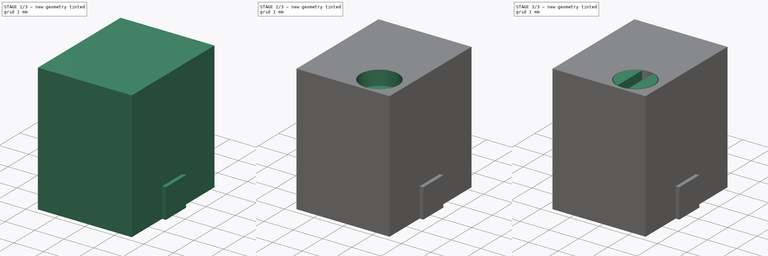
[diagram: build sequence overview — one tinted view per stage of 3, left to right]
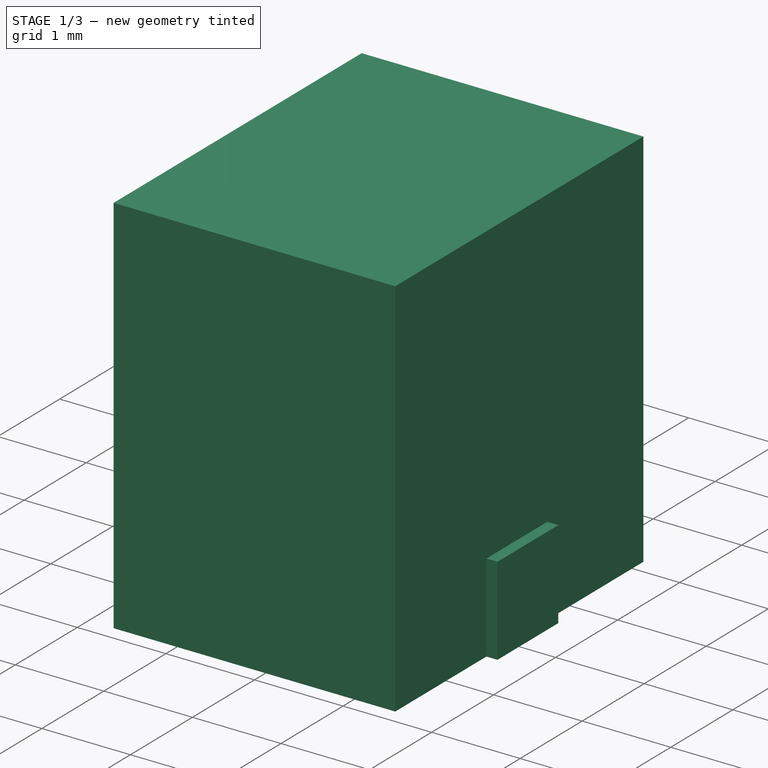
[diagram: stage 1 of 3 — iso view after this stage's code; geometry added in this stage tinted green]
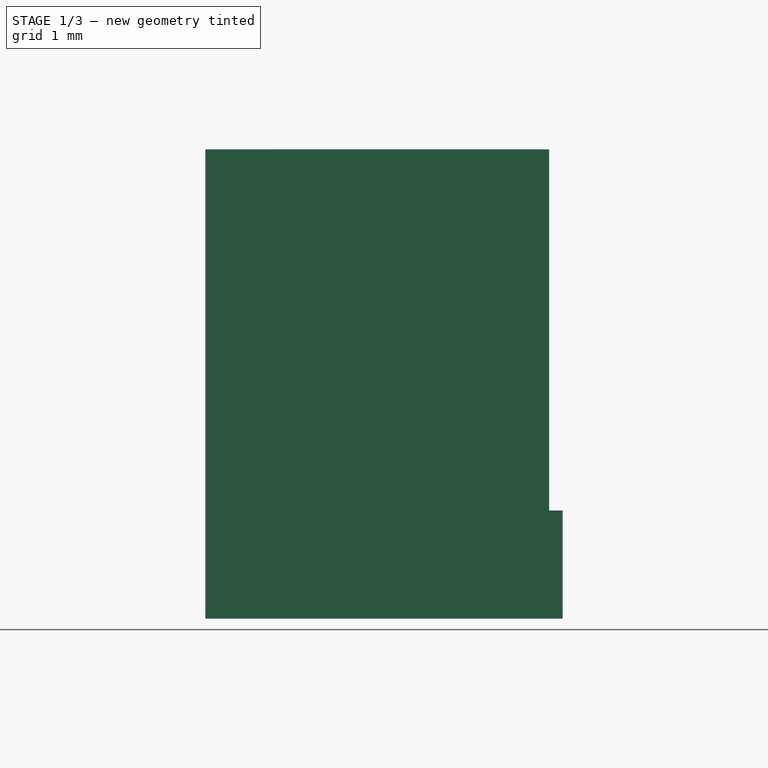
[diagram: stage 1 of 3 — front view after this stage's code; geometry added in this stage tinted green]
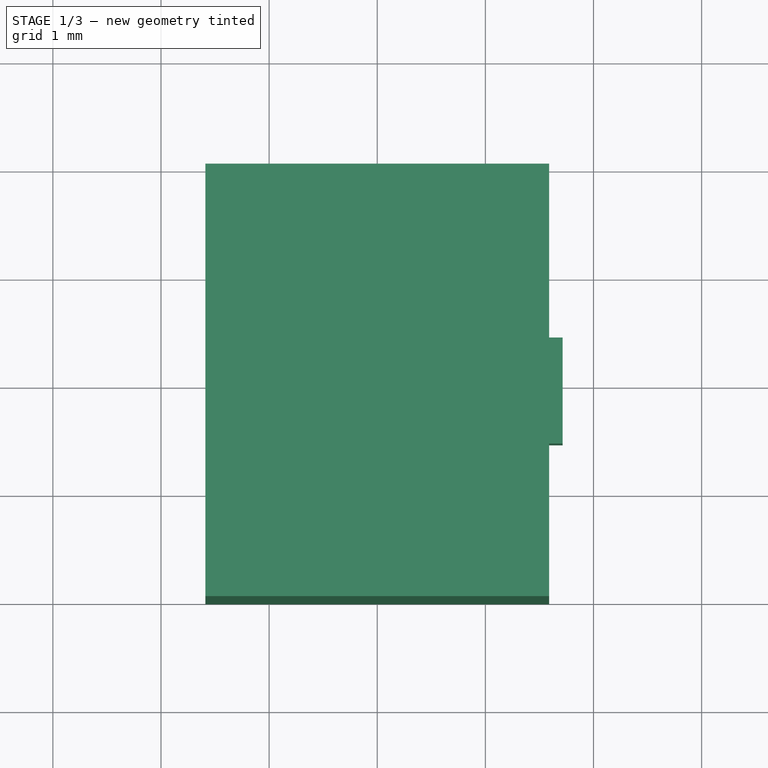
[diagram: stage 1 of 3 — top view after this stage's code; geometry added in this stage tinted green]
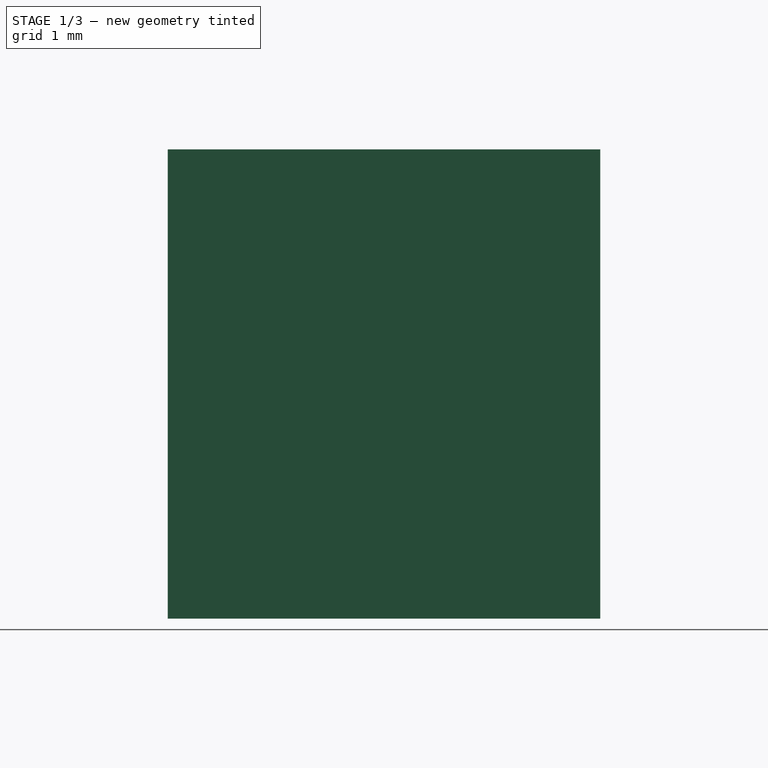
[diagram: stage 1 of 3 — right view after this stage's code; geometry added in this stage tinted green]
FCSTD DOCUMENT  (FreeCAD 0.20R29603 (Git))
Label: Potentiometer_Bourns_3223W_Vertical
License: All rights reserved
LicenseURL: http://en.wikipedia.org/wiki/All_rights_reserved
objects: Sketcher::SketchObject×6, PartDesign::Pad×4, PartDesign::Pocket×2, PartDesign::Body×1
note: 19 computed .brp shape members not serialized (recipe doc carries the construction recipe); baked Part::Feature solids carry a one-line shape summary decoded from their .brp

FEATURE [Sketcher::SketchObject] Sketch
  FullyConstrained = true
  MapMode = 5
  Support = -> [XY_Plane]
  sketch-geometry (5):
    g0: LineSegment StartX=-1.59 StartY=2 StartZ=0 EndX=-1.59 EndY=-2 EndZ=0
    g1: LineSegment StartX=-1.59 StartY=-2 StartZ=0 EndX=1.59 EndY=-2 EndZ=0
    g2: LineSegment StartX=1.59 StartY=-2 StartZ=0 EndX=1.59 EndY=2 EndZ=0
    g3: LineSegment StartX=1.59 StartY=2 StartZ=0 EndX=-1.59 EndY=2 EndZ=0
    g4: GeomPoint X=0 Y=0 Z=0
  constraints (12):
    c: Coincident(g0,g1)
    c: Coincident(g1,g2)
    c: Coincident(g2,g3)
    c: Coincident(g3,g0)
    c: Horizontal(g1)
    c: Horizontal(g3)
    c: Vertical(g0)
    c: Vertical(g2)
    c: Symmetric(g1,g0,g4)
    c: Coincident(g4,g-1)
    c: DistanceX(g3,g3) = 3.18
    c: DistanceY(g0,g0) = 4
FEATURE [PartDesign::Pad] Pad
  Direction = (0,0,1)
  Length = 4.34
  Length2 = 10
  Profile = -> Sketch
  ReferenceAxis = -> Sketch [N_Axis]
  Type = 0
FEATURE [Sketcher::SketchObject] Sketch001
  FullyConstrained = true
  MapMode = 5
  Placement = pos=(1.59,0,0) rot=(0.57735,0.57735,0.57735;2.0944rad)
  Support = -> [Pad]
  sketch-geometry (5):
    g0: LineSegment StartX=-0.53 StartY=1 StartZ=0 EndX=-0.53 EndY=0 EndZ=0
    g1: LineSegment StartX=-0.53 StartY=0 StartZ=0 EndX=0.45 EndY=0 EndZ=0
    g2: LineSegment StartX=0.45 StartY=0 StartZ=0 EndX=0.45 EndY=1 EndZ=0
    g3: LineSegment StartX=0.45 StartY=1 StartZ=0 EndX=-0.53 EndY=1 EndZ=0
    g4: GeomPoint X=-0.04 Y=0.5 Z=0
  constraints (13):
    c: Coincident(g0,g1)
    c: Coincident(g1,g2)
    c: Coincident(g2,g3)
    c: Coincident(g3,g0)
    c: Horizontal(g1)
    c: Horizontal(g3)
    c: Vertical(g0)
    c: Vertical(g2)
    c: Symmetric(g1,g0,g4)
    c: PointOnObject(g-1,g1)
    c: DistanceY(g0,g0) = 1
    c: DistanceX(g3,g3) = 0.98
    c: DistanceX(g4,g-1) = 0.04
FEATURE [PartDesign::Pad] Pad001
  BaseFeature = -> Pad
  Direction = (1,0,0)
  Length = 0.125
  Length2 = 10
  Profile = -> Sketch001
  ReferenceAxis = -> Sketch001 [N_Axis]
  Type = 0
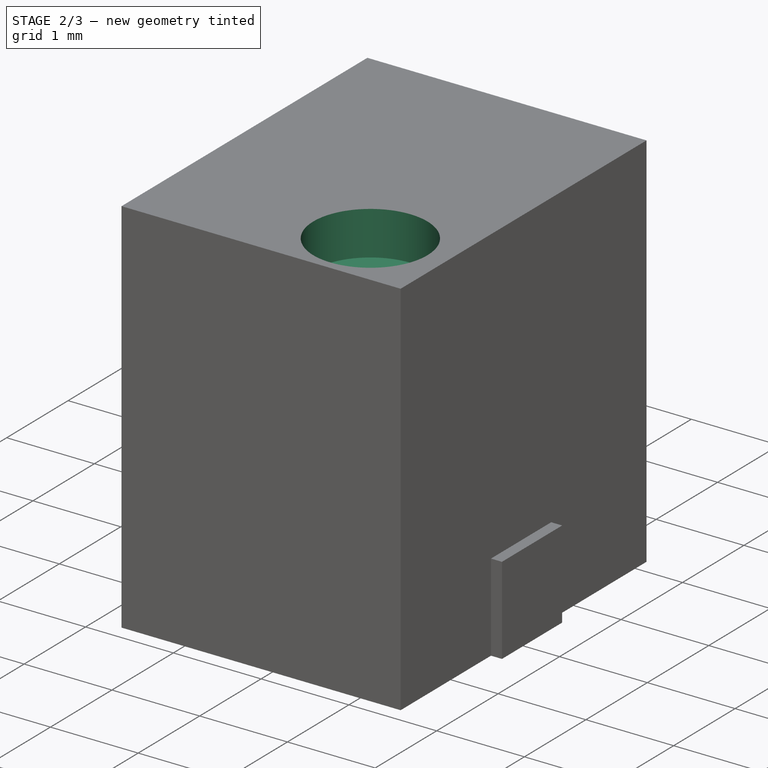
[diagram: stage 2 of 3 — iso view after this stage's code; geometry added in this stage tinted green]
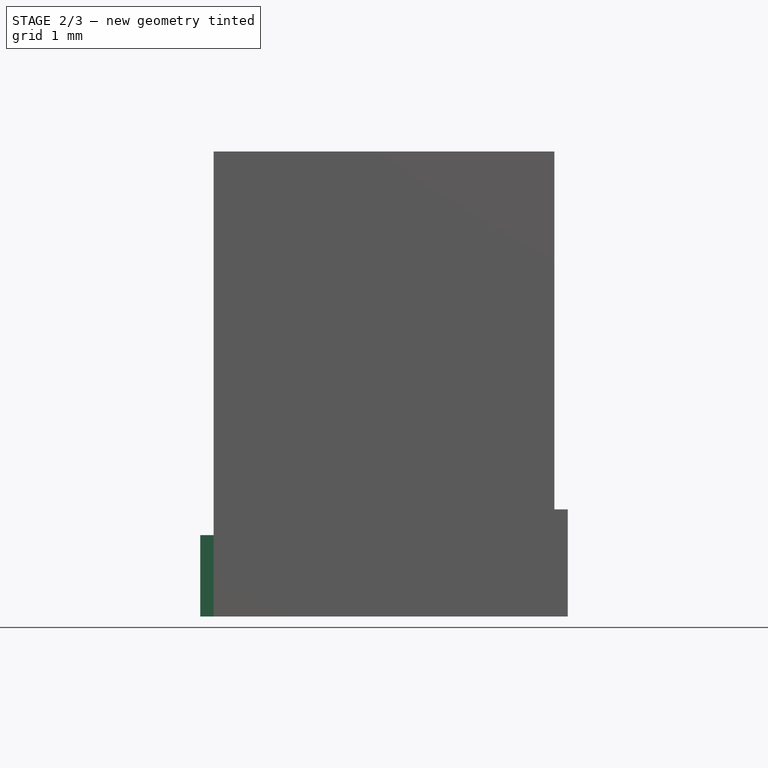
[diagram: stage 2 of 3 — front view after this stage's code; geometry added in this stage tinted green]
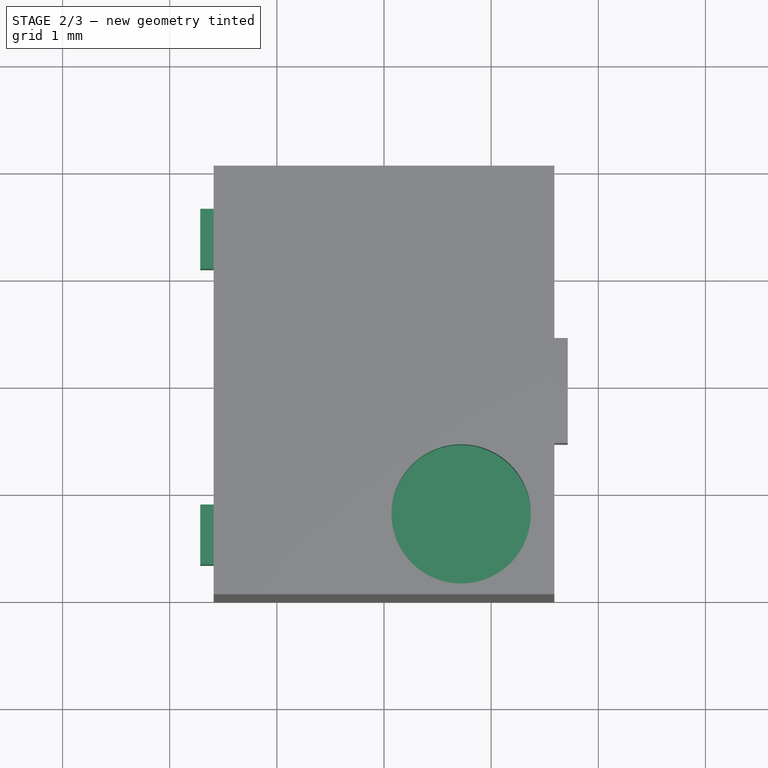
[diagram: stage 2 of 3 — top view after this stage's code; geometry added in this stage tinted green]
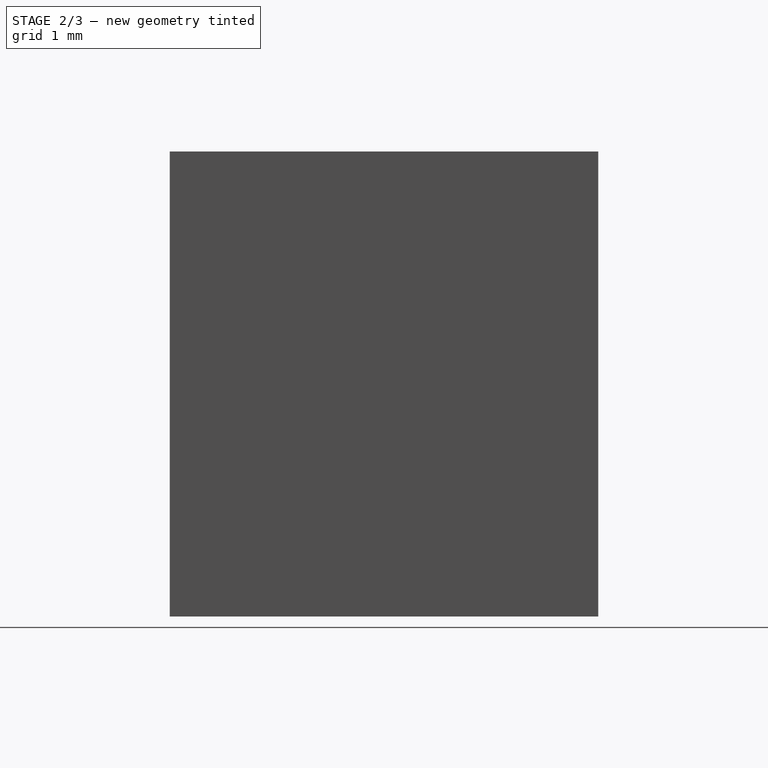
[diagram: stage 2 of 3 — right view after this stage's code; geometry added in this stage tinted green]
FEATURE [Sketcher::SketchObject] Sketch002
  FullyConstrained = true
  MapMode = 5
  Placement = pos=(-1.59,0,0) rot=(0.57735,-0.57735,-0.57735;2.0944rad)
  Support = -> [Pad001]
  sketch-geometry (10):
    g0: LineSegment StartX=-1.66 StartY=0.76 StartZ=0 EndX=-1.66 EndY=0 EndZ=0
    g1: LineSegment StartX=-1.66 StartY=0 StartZ=0 EndX=-1.1 EndY=0 EndZ=0
    g2: LineSegment StartX=-1.1 StartY=0 StartZ=0 EndX=-1.1 EndY=0.76 EndZ=0
    g3: LineSegment StartX=-1.1 StartY=0.76 StartZ=0 EndX=-1.66 EndY=0.76 EndZ=0
    g4: GeomPoint X=-1.38 Y=0.38 Z=0
    g5: LineSegment StartX=1.66 StartY=0.76 StartZ=0 EndX=1.66 EndY=0 EndZ=0
    g6: LineSegment StartX=1.66 StartY=0 StartZ=0 EndX=1.1 EndY=0 EndZ=0
    g7: LineSegment StartX=1.1 StartY=0 StartZ=0 EndX=1.1 EndY=0.76 EndZ=0
    g8: LineSegment StartX=1.1 StartY=0.76 StartZ=0 EndX=1.66 EndY=0.76 EndZ=0
    g9: GeomPoint X=1.38 Y=0.38 Z=0
  constraints (24):
    c: Coincident(g0,g1)
    c: Coincident(g1,g2)
    c: Coincident(g2,g3)
    c: Coincident(g3,g0)
    c: Horizontal(g1)
    c: Horizontal(g3)
    c: Vertical(g0)
    c: Vertical(g2)
    c: Symmetric(g1,g0,g4)
    c: PointOnObject(g1,g-1)
    c: DistanceX(g4,g-1) = 1.38
    c: DistanceX(g3,g3) = 0.56
    c: DistanceY(g0,g0) = 0.76
    c: Coincident(g5,g6)
    c: Coincident(g6,g7)
    c: Coincident(g7,g8)
    c: Coincident(g8,g5)
    c: Horizontal(g8)
    c: Vertical(g5)
    c: Vertical(g7)
    c: Symmetric(g6,g5,g9)
    c: Symmetric(g1,g6,g-2)
    c: Symmetric(g0,g5,g-2)
    c: Horizontal(g2,g7)
FEATURE [PartDesign::Pad] Pad002
  BaseFeature = -> Pad001
  Direction = (-1,0,0)
  Length = 0.125
  Length2 = 10
  Profile = -> Sketch002
  ReferenceAxis = -> Sketch002 [N_Axis]
  Type = 0
FEATURE [Sketcher::SketchObject] Sketch003
  FullyConstrained = true
  MapMode = 5
  Placement = pos=(0,0,4.34) rot=(0,0,1;0rad)
  Support = -> [Pad002]
  sketch-geometry (1):
    g0: Circle CenterX=0.72 CenterY=-1.25 CenterZ=0 NormalX=0 NormalY=0 NormalZ=1 AngleXU=0 Radius=0.65
  constraints (3):
    c: DistanceX(g-1,g0) = 0.72
    c: Radius(g0) = 0.65
    c: DistanceY(g0,g-1) = 1.25
FEATURE [PartDesign::Pocket] Pocket
  BaseFeature = -> Pad002
  Direction = (0,0,-1)
  Length = 0.5
  Length2 = 5
  Profile = -> Sketch003
  ReferenceAxis = -> Sketch003 [N_Axis]
  Type = 0
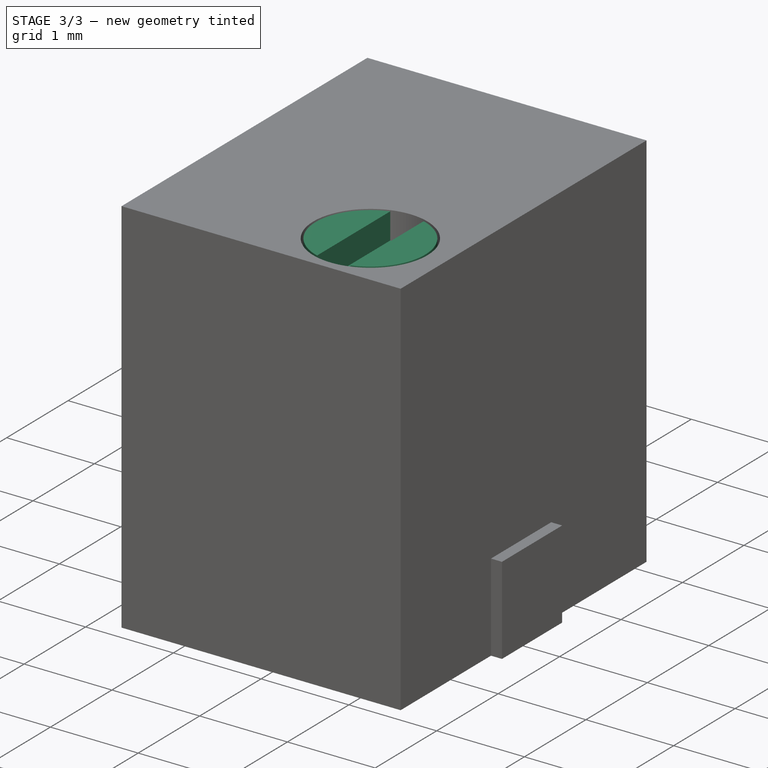
[diagram: stage 3 of 3 — iso view after this stage's code; geometry added in this stage tinted green]
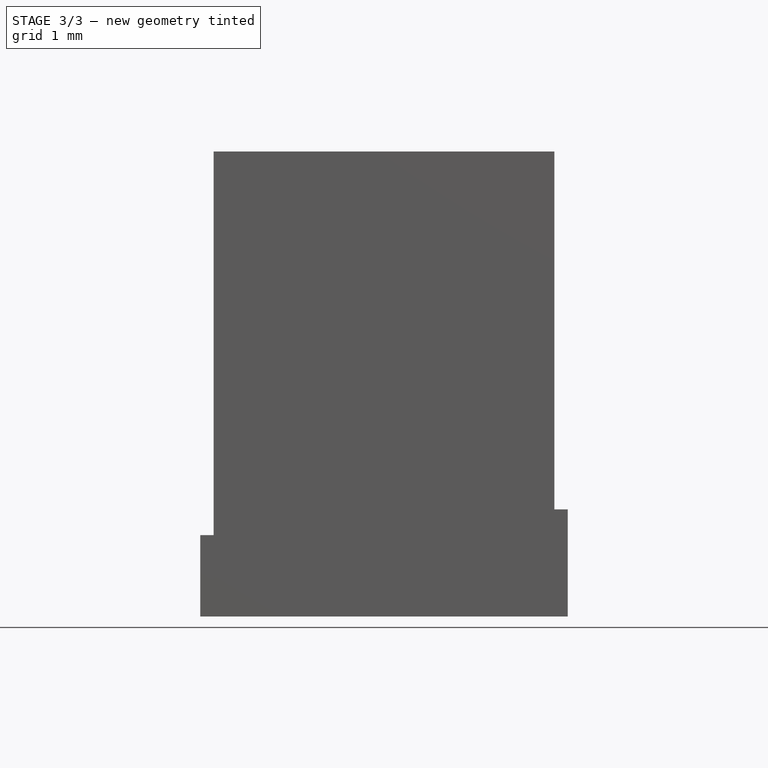
[diagram: stage 3 of 3 — front view after this stage's code; geometry added in this stage tinted green]
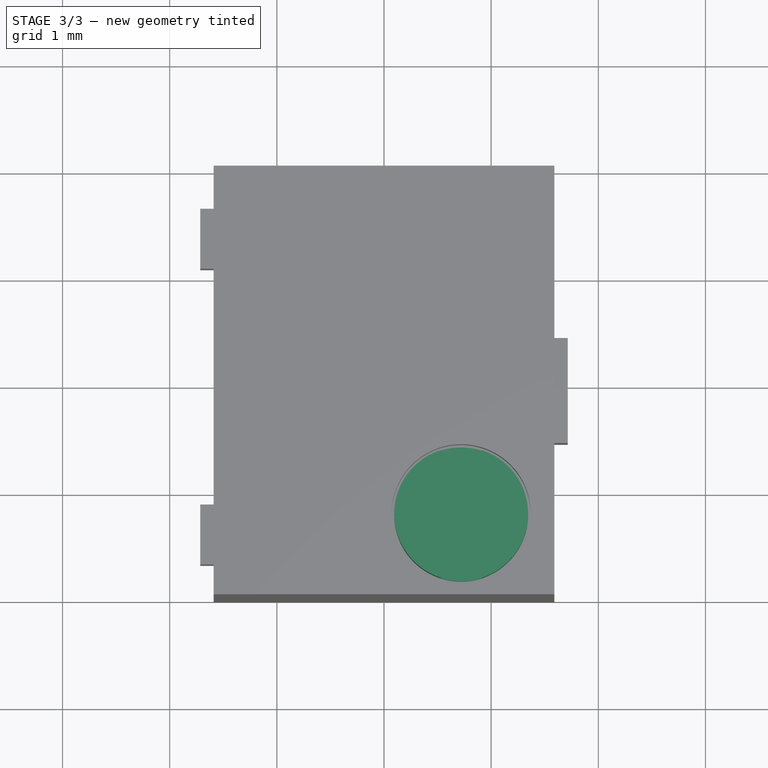
[diagram: stage 3 of 3 — top view after this stage's code; geometry added in this stage tinted green]
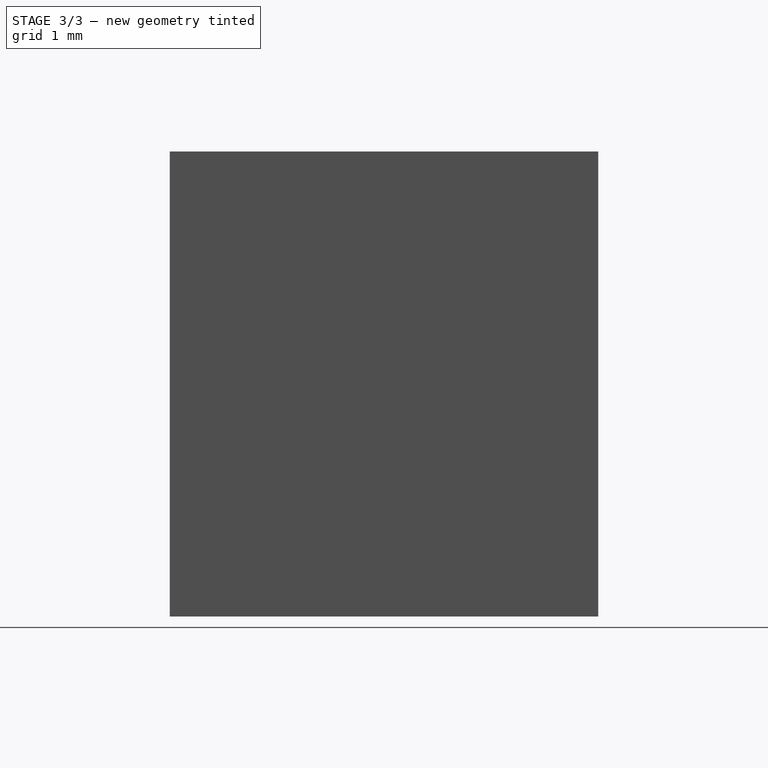
[diagram: stage 3 of 3 — right view after this stage's code; geometry added in this stage tinted green]
FEATURE [Sketcher::SketchObject] Sketch004
  ExternalGeometry = -> [Pocket]
  FullyConstrained = true
  MapMode = 5
  Placement = pos=(0,0,3.84) rot=(0,0,1;0rad)
  Support = -> [Pocket]
  sketch-geometry (1):
    g0: Circle CenterX=0.72 CenterY=-1.25 CenterZ=0 NormalX=0 NormalY=0 NormalZ=1 AngleXU=0 Radius=0.625
  constraints (2):
    c: Coincident(g0,g-3)
    c: Radius(g0) = 0.625
FEATURE [PartDesign::Pad] Pad003
  BaseFeature = -> Pocket
  Direction = (0,0,1)
  Length = 0.5
  Length2 = 10
  Profile = -> Sketch004
  ReferenceAxis = -> Sketch004 [N_Axis]
  Type = 0
FEATURE [Sketcher::SketchObject] Sketch005
  ExternalGeometry = -> [Pad003]
  FullyConstrained = true
  MapMode = 5
  Placement = pos=(0,0,4.34) rot=(0,0,1;0rad)
  Support = -> [Pad003]
  sketch-geometry (5):
    g0: LineSegment StartX=0.53 StartY=-0.65458 StartZ=0 EndX=0.53 EndY=-1.84542 EndZ=0
    g1: LineSegment StartX=0.91 StartY=-1.84542 StartZ=0 EndX=0.91 EndY=-0.65458 EndZ=0
    g2: GeomPoint X=0.72 Y=-1.25 Z=0
    g3: ArcOfCircle CenterX=0.72 CenterY=-1.25 CenterZ=0 NormalX=0 NormalY=0 NormalZ=1 AngleXU=0 Radius=0.625 StartAngle=1.26191 EndAngle=1.87968
    g4: ArcOfCircle CenterX=0.72 CenterY=-1.25 CenterZ=0 NormalX=0 NormalY=0 NormalZ=1 AngleXU=0 Radius=0.625 StartAngle=4.4035 EndAngle=5.02128
  constraints (15):
    c: Vertical(g0)
    c: Vertical(g1)
    c: Symmetric(g1,g0,g2)
    c: Coincident(g2,g-3)
    c: Horizontal(g0,g1)
    c: Horizontal(g0,g1)
    c: PointOnObject(g0,g-3)
    c: DistanceX(g0,g1) = 0.38
    c: Coincident(g3,g2)
    c: Coincident(g3,g1)
    c: PointOnObject(g4,g1)
    c: Equal(g3,g4)
    c: PointOnObject(g3,g0)
    c: PointOnObject(g4,g0)
    c: Coincident(g3,g4)
FEATURE [PartDesign::Pocket] Pocket001
  BaseFeature = -> Pad003
  Direction = (0,0,-1)
  Length = 0.3
  Length2 = 5
  Profile = -> Sketch005
  ReferenceAxis = -> Sketch005 [N_Axis]
  Type = 0
FEATURE [PartDesign::Body] Body
  Group = -> [Sketch,Pad,Sketch001,Pad001,Sketch002,Pad002,Sketch003,Pocket,Sketch004,Pad003,Sketch005,Pocket001]
  Origin = -> Origin
  Tip = -> Pocket001
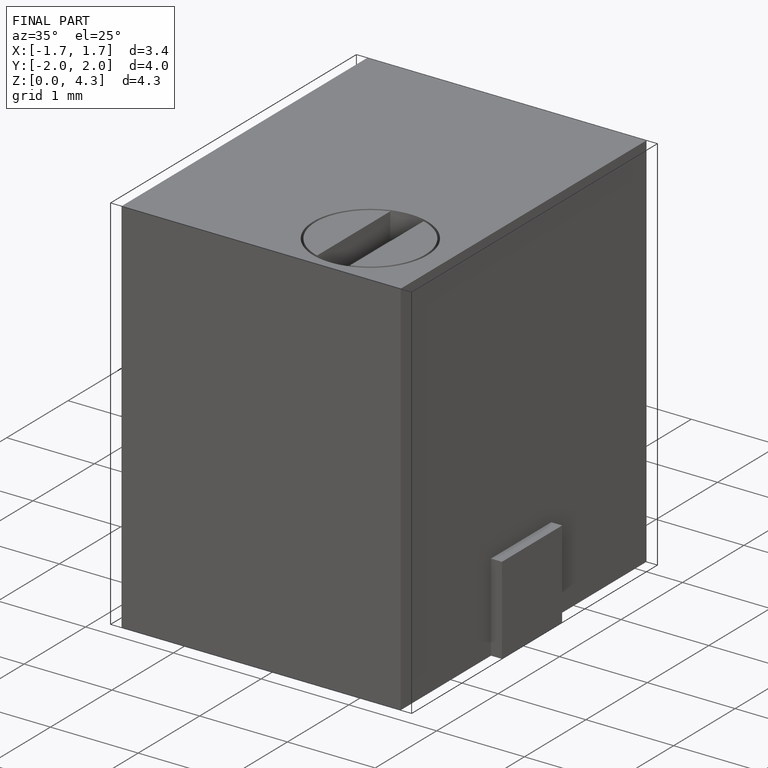
[diagram: finished part — iso view with bounding-box wireframe]
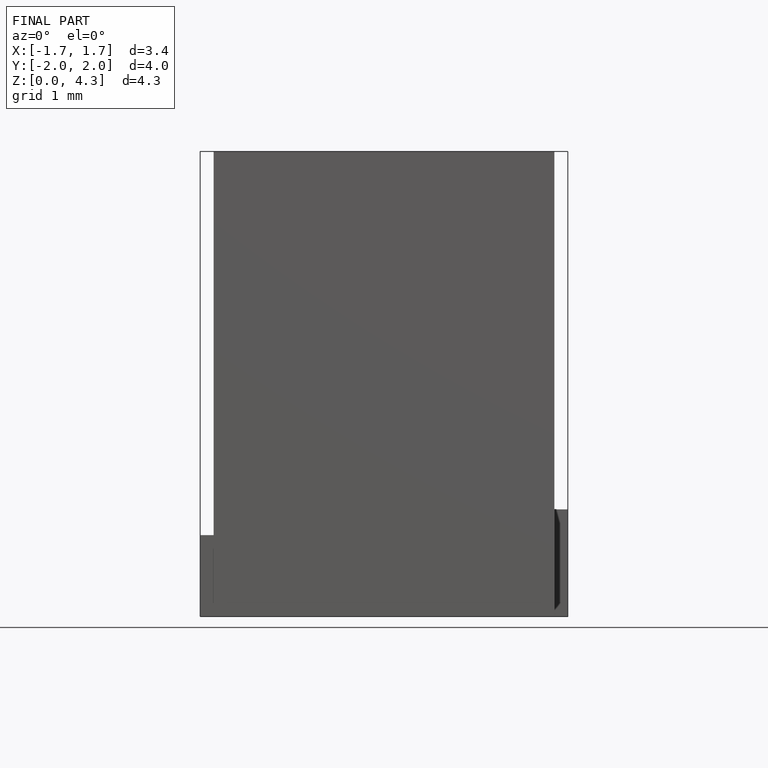
[diagram: finished part — front view with bounding-box wireframe]
